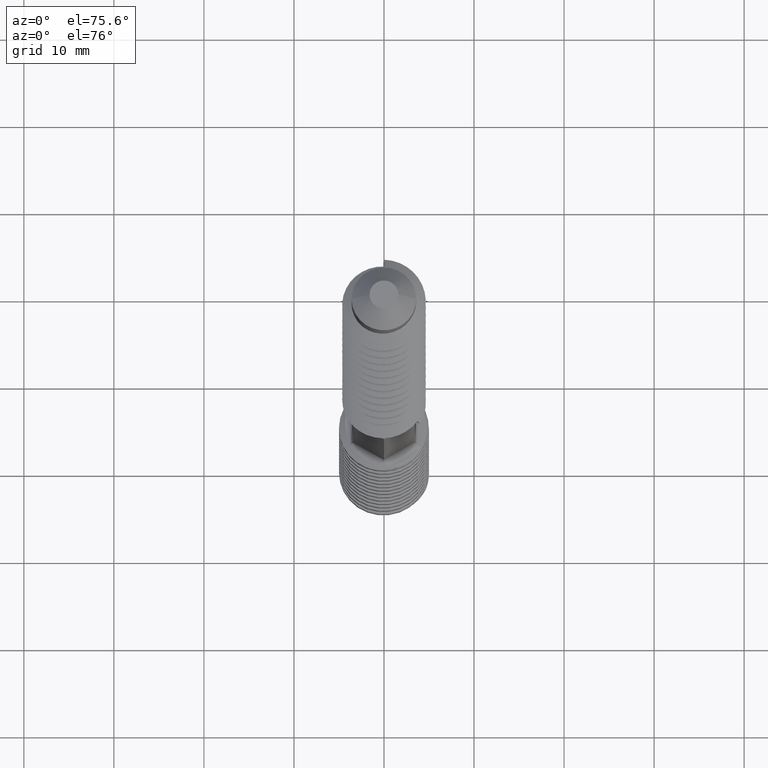
[diagram: clean part render]
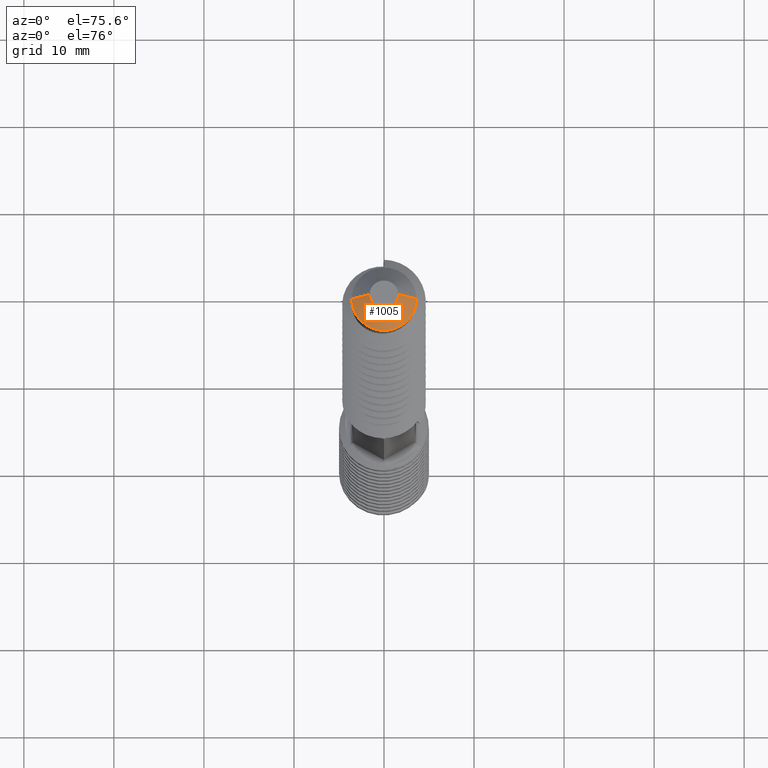
[diagram: same view with one face highlighted and labeled with its STEP entity id]
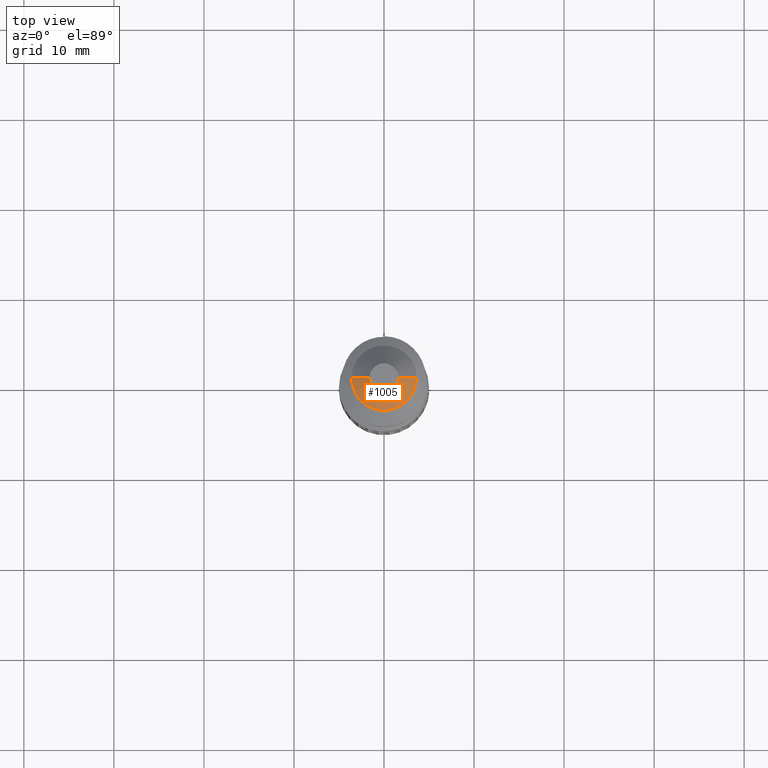
[diagram: same view with one face highlighted and labeled with its STEP entity id]
A machine part, auxiliary view. The second image highlights one B-rep face of the part: STEP entity #1005.
A second angle (top view) of the same face is appended — the face is thin or edge-on in the first view.
In plain terms, the highlighted conical surface has half-angle 45 deg.
Its self-contained STEP definition (entity closure, byte-faithful):
#563 = CARTESIAN_POINT ( 'NONE',  ( 0.0000000000000000000, 0.0000000000000000000, 11.50000000000000000 ) ) ;
#643 = DIRECTION ( 'NONE',  ( 0.0000000000000000000, 0.0000000000000000000, 1.000000000000000000 ) ) ;
#1005 = ADVANCED_FACE ( 'NONE', ( #14512 ), #2119, .T. ) ;
#2016 = ORIENTED_EDGE ( 'NONE', *, *, #13892, .F. ) ;
#2119 = CONICAL_SURFACE ( 'NONE', #3398, 1.599999999999996800, 0.7853981633974485000 ) ;
#2132 = DIRECTION ( 'NONE',  ( -1.000000000000000000, 0.0000000000000000000, 0.0000000000000000000 ) ) ;
#2225 = ORIENTED_EDGE ( 'NONE', *, *, #3780, .F. ) ;
#2485 = VERTEX_POINT ( 'NONE', #12286 ) ;
#2670 = CARTESIAN_POINT ( 'NONE',  ( 1.599999999999996800, 1.959434878635761000E-016, 11.50000000000000000 ) ) ;
#3398 = AXIS2_PLACEMENT_3D ( 'NONE', #563, #17518, #2132 ) ;
#3780 = EDGE_CURVE ( 'NONE', #13542, #6680, #16858, .T. ) ;
#3872 = LINE ( 'NONE', #2670, #11637 ) ;
#5265 = CARTESIAN_POINT ( 'NONE',  ( 0.0000000000000000000, 0.0000000000000000000, 9.499999999999998200 ) ) ;
#5748 = AXIS2_PLACEMENT_3D ( 'NONE', #5265, #16080, #6818 ) ;
#6680 = VERTEX_POINT ( 'NONE', #7863 ) ;
#6818 = DIRECTION ( 'NONE',  ( 1.000000000000000000, 0.0000000000000000000, 0.0000000000000000000 ) ) ;
#7707 = AXIS2_PLACEMENT_3D ( 'NONE', #9968, #643, #11539 ) ;
#7863 = CARTESIAN_POINT ( 'NONE',  ( 1.599999999999996800, 3.184081677783116200E-016, 11.50000000000000000 ) ) ;
#8439 = EDGE_CURVE ( 'NONE', #6680, #9496, #3872, .T. ) ;
#8701 = CARTESIAN_POINT ( 'NONE',  ( -1.599999999999996800, 0.0000000000000000000, 11.50000000000000000 ) ) ;
#8866 = DIRECTION ( 'NONE',  ( 0.7071067811865477900, 8.659560562354936600E-017, -0.7071067811865473500 ) ) ;
#9496 = VERTEX_POINT ( 'NONE', #10892 ) ;
#9968 = CARTESIAN_POINT ( 'NONE',  ( 0.0000000000000000000, 0.0000000000000000000, 11.50000000000000000 ) ) ;
#10143 = EDGE_CURVE ( 'NONE', #13542, #2485, #19362, .T. ) ;
#10892 = CARTESIAN_POINT ( 'NONE',  ( 3.600000000000000100, 4.408728476930471200E-016, 9.499999999999998200 ) ) ;
#11539 = DIRECTION ( 'NONE',  ( 1.000000000000000000, 0.0000000000000000000, 0.0000000000000000000 ) ) ;
#11637 = VECTOR ( 'NONE', #8866, 1000.000000000000000 ) ;
#12286 = CARTESIAN_POINT ( 'NONE',  ( -3.600000000000000100, 0.0000000000000000000, 9.499999999999998200 ) ) ;
#13542 = VERTEX_POINT ( 'NONE', #18324 ) ;
#13833 = ORIENTED_EDGE ( 'NONE', *, *, #8439, .F. ) ;
#13892 = EDGE_CURVE ( 'NONE', #9496, #2485, #19011, .T. ) ;
#14512 = FACE_OUTER_BOUND ( 'NONE', #14640, .T. ) ;
#14640 = EDGE_LOOP ( 'NONE', ( #13833, #2225, #16061, #2016 ) ) ;
#14750 = VECTOR ( 'NONE', #19591, 1000.000000000000000 ) ;
#16061 = ORIENTED_EDGE ( 'NONE', *, *, #10143, .T. ) ;
#16080 = DIRECTION ( 'NONE',  ( 0.0000000000000000000, 0.0000000000000000000, -1.000000000000000000 ) ) ;
#16858 = CIRCLE ( 'NONE', #7707, 1.599999999999996800 ) ;
#17518 = DIRECTION ( 'NONE',  ( 0.0000000000000000000, 0.0000000000000000000, -1.000000000000000000 ) ) ;
#18324 = CARTESIAN_POINT ( 'NONE',  ( -1.599999999999996800, 0.0000000000000000000, 11.50000000000000000 ) ) ;
#19011 = CIRCLE ( 'NONE', #5748, 3.600000000000000100 ) ;
#19362 = LINE ( 'NONE', #8701, #14750 ) ;
#19591 = DIRECTION ( 'NONE',  ( -0.7071067811865477900, 0.0000000000000000000, -0.7071067811865473500 ) ) ;